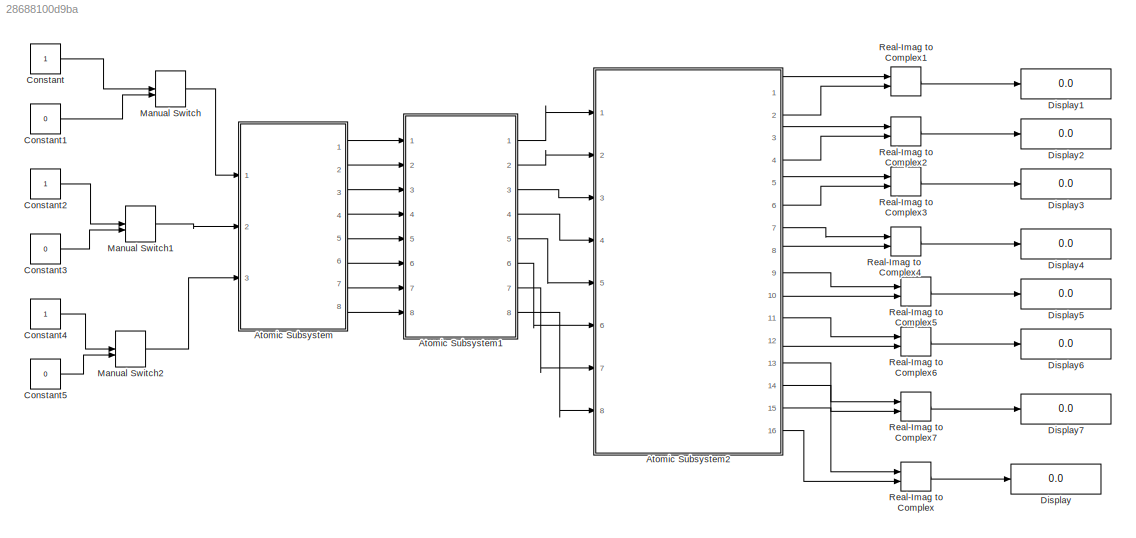
MODEL slx_28688100d9ba
KIND model
CONFIG AbsTol = auto
CONFIG EnableMultiTasking = off
CONFIG FixedStep = auto
CONFIG MaxStep = auto
CONFIG MinStep = auto
CONFIG RelTol = 1e-3
CONFIG SampleTimeConstraint = Unconstrained
CONFIG Solver = VariableStepAuto
CONFIG SolverName = VariableStepAuto
CONFIG StartTime = 0.0
CONFIG StopTime = 10.0
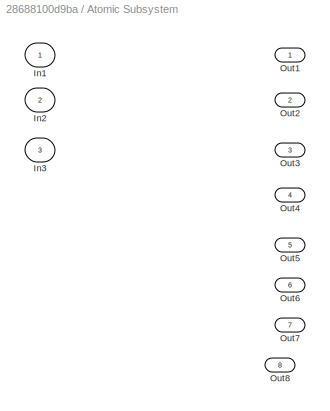
BLOCK [SubSystem] Atomic Subsystem
  Ports = [3, 8]
  RequestExecContextInheritance = off
  TreatAsAtomicUnit = on
  Variant = off
BLOCK [Inport] Atomic Subsystem/In1
  IconDisplay = Port number
BLOCK [Inport] Atomic Subsystem/In2
  IconDisplay = Port number
  Port = 2
BLOCK [Inport] Atomic Subsystem/In3
  IconDisplay = Port number
  Port = 3
BLOCK [Outport] Atomic Subsystem/Out1
  IconDisplay = Port number
BLOCK [Outport] Atomic Subsystem/Out2
  IconDisplay = Port number
  Port = 2
BLOCK [Outport] Atomic Subsystem/Out3
  IconDisplay = Port number
  Port = 3
BLOCK [Outport] Atomic Subsystem/Out4
  IconDisplay = Port number
  Port = 4
BLOCK [Outport] Atomic Subsystem/Out5
  IconDisplay = Port number
  Port = 5
BLOCK [Outport] Atomic Subsystem/Out6
  IconDisplay = Port number
  Port = 6
BLOCK [Outport] Atomic Subsystem/Out7
  IconDisplay = Port number
  Port = 7
BLOCK [Outport] Atomic Subsystem/Out8
  IconDisplay = Port number
  Port = 8
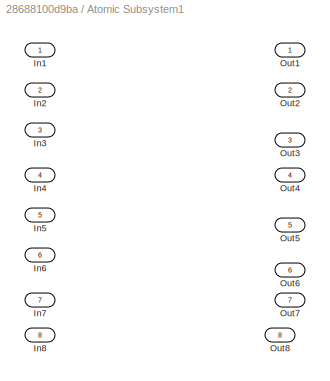
BLOCK [SubSystem] Atomic Subsystem1
  Ports = [8, 8]
  RequestExecContextInheritance = off
  TreatAsAtomicUnit = on
  Variant = off
BLOCK [Inport] Atomic Subsystem1/In1
  IconDisplay = Port number
BLOCK [Inport] Atomic Subsystem1/In2
  IconDisplay = Port number
  Port = 2
BLOCK [Inport] Atomic Subsystem1/In3
  IconDisplay = Port number
  Port = 3
BLOCK [Inport] Atomic Subsystem1/In4
  IconDisplay = Port number
  Port = 4
BLOCK [Inport] Atomic Subsystem1/In5
  IconDisplay = Port number
  Port = 5
BLOCK [Inport] Atomic Subsystem1/In6
  IconDisplay = Port number
  Port = 6
BLOCK [Inport] Atomic Subsystem1/In7
  IconDisplay = Port number
  Port = 7
BLOCK [Inport] Atomic Subsystem1/In8
  IconDisplay = Port number
  Port = 8
BLOCK [Outport] Atomic Subsystem1/Out1
  IconDisplay = Port number
BLOCK [Outport] Atomic Subsystem1/Out2
  IconDisplay = Port number
  Port = 2
BLOCK [Outport] Atomic Subsystem1/Out3
  IconDisplay = Port number
  Port = 3
BLOCK [Outport] Atomic Subsystem1/Out4
  IconDisplay = Port number
  Port = 4
BLOCK [Outport] Atomic Subsystem1/Out5
  IconDisplay = Port number
  Port = 5
BLOCK [Outport] Atomic Subsystem1/Out6
  IconDisplay = Port number
  Port = 6
BLOCK [Outport] Atomic Subsystem1/Out7
  IconDisplay = Port number
  Port = 7
BLOCK [Outport] Atomic Subsystem1/Out8
  IconDisplay = Port number
  Port = 8
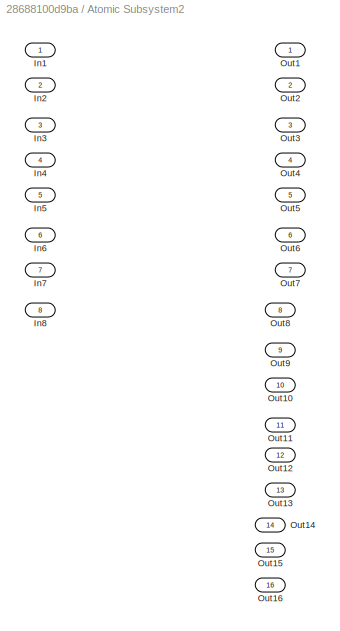
BLOCK [SubSystem] Atomic Subsystem2
  Ports = [8, 16]
  RequestExecContextInheritance = off
  TreatAsAtomicUnit = on
  Variant = off
BLOCK [Inport] Atomic Subsystem2/In1
  IconDisplay = Port number
BLOCK [Inport] Atomic Subsystem2/In2
  IconDisplay = Port number
  Port = 2
BLOCK [Inport] Atomic Subsystem2/In3
  IconDisplay = Port number
  Port = 3
BLOCK [Inport] Atomic Subsystem2/In4
  IconDisplay = Port number
  Port = 4
BLOCK [Inport] Atomic Subsystem2/In5
  IconDisplay = Port number
  Port = 5
BLOCK [Inport] Atomic Subsystem2/In6
  IconDisplay = Port number
  Port = 6
BLOCK [Inport] Atomic Subsystem2/In7
  IconDisplay = Port number
  Port = 7
BLOCK [Inport] Atomic Subsystem2/In8
  IconDisplay = Port number
  Port = 8
BLOCK [Outport] Atomic Subsystem2/Out1
  IconDisplay = Port number
BLOCK [Outport] Atomic Subsystem2/Out10
  IconDisplay = Port number
  Port = 10
BLOCK [Outport] Atomic Subsystem2/Out11
  IconDisplay = Port number
  Port = 11
BLOCK [Outport] Atomic Subsystem2/Out12
  IconDisplay = Port number
  Port = 12
BLOCK [Outport] Atomic Subsystem2/Out13
  IconDisplay = Port number
  Port = 13
BLOCK [Outport] Atomic Subsystem2/Out14
  IconDisplay = Port number
  Port = 14
BLOCK [Outport] Atomic Subsystem2/Out15
  IconDisplay = Port number
  Port = 15
BLOCK [Outport] Atomic Subsystem2/Out16
  IconDisplay = Port number
  Port = 16
BLOCK [Outport] Atomic Subsystem2/Out2
  IconDisplay = Port number
  Port = 2
BLOCK [Outport] Atomic Subsystem2/Out3
  IconDisplay = Port number
  Port = 3
BLOCK [Outport] Atomic Subsystem2/Out4
  IconDisplay = Port number
  Port = 4
BLOCK [Outport] Atomic Subsystem2/Out5
  IconDisplay = Port number
  Port = 5
BLOCK [Outport] Atomic Subsystem2/Out6
  IconDisplay = Port number
  Port = 6
BLOCK [Outport] Atomic Subsystem2/Out7
  IconDisplay = Port number
  Port = 7
BLOCK [Outport] Atomic Subsystem2/Out8
  IconDisplay = Port number
  Port = 8
BLOCK [Outport] Atomic Subsystem2/Out9
  IconDisplay = Port number
  Port = 9
BLOCK [Constant] Constant
BLOCK [Constant] Constant1
  Value = 0
BLOCK [Constant] Constant2
BLOCK [Constant] Constant3
  Value = 0
BLOCK [Constant] Constant4
BLOCK [Constant] Constant5
  Value = 0
BLOCK [Display] Display
  Decimation = 1
  Ports = [1]
BLOCK [Display] Display1
  Decimation = 1
  Ports = [1]
BLOCK [Display] Display2
  Decimation = 1
  Ports = [1]
BLOCK [Display] Display3
  Decimation = 1
  Ports = [1]
BLOCK [Display] Display4
  Decimation = 1
  Ports = [1]
BLOCK [Display] Display5
  Decimation = 1
  Ports = [1]
BLOCK [Display] Display6
  Decimation = 1
  Ports = [1]
BLOCK [Display] Display7
  Decimation = 1
  Ports = [1]
BLOCK [ManualSwitch] Manual Switch
  CurrentSetting = 0
BLOCK [ManualSwitch] Manual Switch1
  CurrentSetting = 0
BLOCK [ManualSwitch] Manual Switch2
  CurrentSetting = 0
BLOCK [RealImagToComplex] Real-Imag to Complex
  Ports = [2, 1]
BLOCK [RealImagToComplex] Real-Imag to Complex1
  Ports = [2, 1]
BLOCK [RealImagToComplex] Real-Imag to Complex2
  Ports = [2, 1]
BLOCK [RealImagToComplex] Real-Imag to Complex3
  Ports = [2, 1]
BLOCK [RealImagToComplex] Real-Imag to Complex4
  Ports = [2, 1]
BLOCK [RealImagToComplex] Real-Imag to Complex5
  Ports = [2, 1]
BLOCK [RealImagToComplex] Real-Imag to Complex6
  Ports = [2, 1]
BLOCK [RealImagToComplex] Real-Imag to Complex7
  Ports = [2, 1]
LINE Atomic Subsystem1:1 -> Atomic Subsystem2:1
LINE Atomic Subsystem1:2 -> Atomic Subsystem2:2
LINE Atomic Subsystem1:3 -> Atomic Subsystem2:3
LINE Atomic Subsystem1:4 -> Atomic Subsystem2:4
LINE Atomic Subsystem1:5 -> Atomic Subsystem2:5
LINE Atomic Subsystem1:6 -> Atomic Subsystem2:6
LINE Atomic Subsystem1:7 -> Atomic Subsystem2:7
LINE Atomic Subsystem1:8 -> Atomic Subsystem2:8
LINE Atomic Subsystem2:1 -> Real-Imag to Complex1:1
LINE Atomic Subsystem2:10 -> Real-Imag to Complex5:2
LINE Atomic Subsystem2:11 -> Real-Imag to Complex6:1
LINE Atomic Subsystem2:12 -> Real-Imag to Complex6:2
LINE Atomic Subsystem2:13 -> Real-Imag to Complex7:1
LINE Atomic Subsystem2:14 -> Real-Imag to Complex7:2
LINE Atomic Subsystem2:15 -> Real-Imag to Complex:1
LINE Atomic Subsystem2:16 -> Real-Imag to Complex:2
LINE Atomic Subsystem2:2 -> Real-Imag to Complex1:2
LINE Atomic Subsystem2:3 -> Real-Imag to Complex2:1
LINE Atomic Subsystem2:4 -> Real-Imag to Complex2:2
LINE Atomic Subsystem2:5 -> Real-Imag to Complex3:1
LINE Atomic Subsystem2:6 -> Real-Imag to Complex3:2
LINE Atomic Subsystem2:7 -> Real-Imag to Complex4:1
LINE Atomic Subsystem2:8 -> Real-Imag to Complex4:2
LINE Atomic Subsystem2:9 -> Real-Imag to Complex5:1
LINE Atomic Subsystem:1 -> Atomic Subsystem1:1
LINE Atomic Subsystem:2 -> Atomic Subsystem1:2
LINE Atomic Subsystem:3 -> Atomic Subsystem1:3
LINE Atomic Subsystem:4 -> Atomic Subsystem1:4
LINE Atomic Subsystem:5 -> Atomic Subsystem1:5
LINE Atomic Subsystem:6 -> Atomic Subsystem1:6
LINE Atomic Subsystem:7 -> Atomic Subsystem1:7
LINE Atomic Subsystem:8 -> Atomic Subsystem1:8
LINE Constant1:1 -> Manual Switch:2
LINE Constant2:1 -> Manual Switch1:1
LINE Constant3:1 -> Manual Switch1:2
LINE Constant4:1 -> Manual Switch2:1
LINE Constant5:1 -> Manual Switch2:2
LINE Constant:1 -> Manual Switch:1
LINE Manual Switch1:1 -> Atomic Subsystem:2
LINE Manual Switch2:1 -> Atomic Subsystem:3
LINE Manual Switch:1 -> Atomic Subsystem:1
LINE Real-Imag to Complex1:1 -> Display1:1
LINE Real-Imag to Complex2:1 -> Display2:1
LINE Real-Imag to Complex3:1 -> Display3:1
LINE Real-Imag to Complex4:1 -> Display4:1
LINE Real-Imag to Complex5:1 -> Display5:1
LINE Real-Imag to Complex6:1 -> Display6:1
LINE Real-Imag to Complex7:1 -> Display7:1
LINE Real-Imag to Complex:1 -> Display:1
